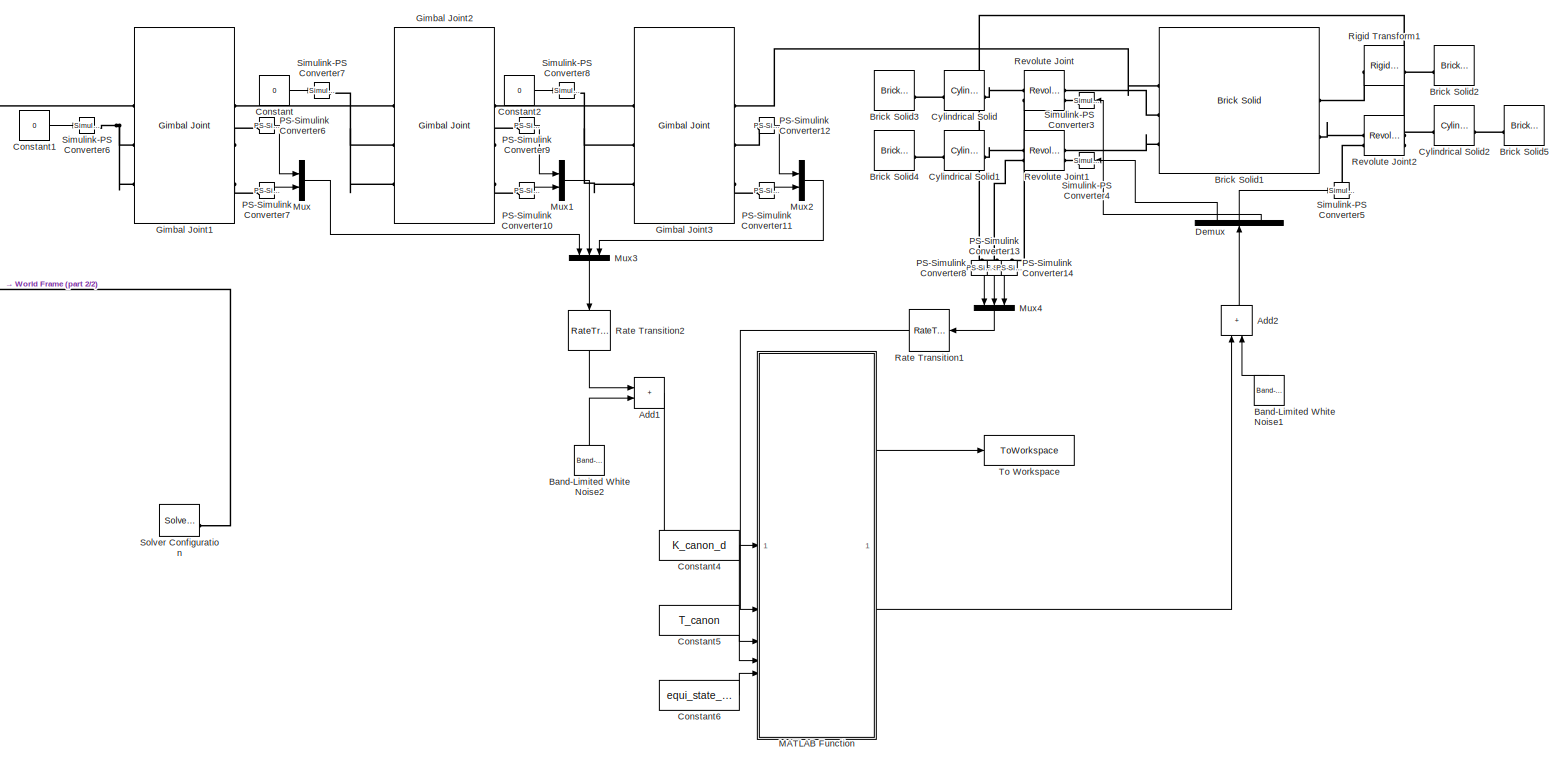
[diagram: root canvas - part 1/2, most of the canvas]
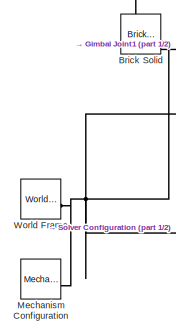
[diagram: root canvas - part 2/2, top left region]
MODEL slx_a6e4c7abbbd3
KIND model
CONFIG AbsTol = 1e-3
CONFIG EnableMultiTasking = on
CONFIG FixedStep = 0.02
CONFIG MaxStep = auto
CONFIG MinStep = auto
CONFIG RelTol = 1e-3
CONFIG SampleTimeConstraint = Unconstrained
CONFIG SolverName = VariableStepAuto
CONFIG StartTime = 0.0
CONFIG StopTime = 20
BLOCK [Sum] Add1
  IconShape = rectangular
BLOCK [Sum] Add2
  IconShape = rectangular
  NameLocation = right
BLOCK [Reference] Band-Limited White Noise1  REF=simulink/Sources/Band-Limited
White Noise
  NameLocation = right
  SourceBlock = simulink/Sources/Band-Limited\nWhite Noise
  SourceType = Band-Limited White Noise.
BLOCK [Reference] Band-Limited White Noise2  REF=simulink/Sources/Band-Limited
White Noise
  NameLocation = right
  SourceBlock = simulink/Sources/Band-Limited\nWhite Noise
  SourceType = Band-Limited White Noise.
BLOCK [Reference] Brick Solid  REF=sm_lib/Body Elements/Brick Solid
  SourceBlock = sm_lib/Body Elements/Brick Solid
  SourceType = Brick Solid
BLOCK [Reference] Brick Solid1  REF=sm_lib/Body Elements/Brick Solid
  NameLocation = left
  SourceBlock = sm_lib/Body Elements/Brick Solid
  SourceType = Brick Solid
BLOCK [Reference] Brick Solid2  REF=sm_lib/Body Elements/Brick Solid
  NameLocation = top
  SourceBlock = sm_lib/Body Elements/Brick Solid
  SourceType = Brick Solid
BLOCK [Reference] Brick Solid3  REF=sm_lib/Body Elements/Brick Solid
  SourceBlock = sm_lib/Body Elements/Brick Solid
  SourceType = Brick Solid
BLOCK [Reference] Brick Solid4  REF=sm_lib/Body Elements/Brick Solid
  SourceBlock = sm_lib/Body Elements/Brick Solid
  SourceType = Brick Solid
BLOCK [Reference] Brick Solid5  REF=sm_lib/Body Elements/Brick Solid
  NameLocation = top
  SourceBlock = sm_lib/Body Elements/Brick Solid
  SourceType = Brick Solid
BLOCK [Constant] Constant
  Value = 0
BLOCK [Constant] Constant1
  Value = 0
BLOCK [Constant] Constant2
  Value = 0
BLOCK [Constant] Constant4
  Value = K_canon_d
BLOCK [Constant] Constant5
  Value = T_canon
BLOCK [Constant] Constant6
  Value = equi_state_up
BLOCK [Reference] Cylindrical Solid  REF=sm_lib/Body Elements/Cylindrical Solid
  SourceBlock = sm_lib/Body Elements/Cylindrical Solid
  SourceType = Cylindrical Solid
BLOCK [Reference] Cylindrical Solid1  REF=sm_lib/Body Elements/Cylindrical Solid
  SourceBlock = sm_lib/Body Elements/Cylindrical Solid
  SourceType = Cylindrical Solid
BLOCK [Reference] Cylindrical Solid2  REF=sm_lib/Body Elements/Cylindrical Solid
  NameLocation = top
  SourceBlock = sm_lib/Body Elements/Cylindrical Solid
  SourceType = Cylindrical Solid
BLOCK [Demux] Demux
  NameLocation = right
  Outputs = 3
BLOCK [Reference] Gimbal Joint1  REF=sm_lib/Joints/Gimbal Joint
  SourceBlock = sm_lib/Joints/Gimbal Joint
  SourceType = Gimbal Joint
BLOCK [Reference] Gimbal Joint2  REF=sm_lib/Joints/Gimbal Joint
  SourceBlock = sm_lib/Joints/Gimbal Joint
  SourceType = Gimbal Joint
BLOCK [Reference] Gimbal Joint3  REF=sm_lib/Joints/Gimbal Joint
  SourceBlock = sm_lib/Joints/Gimbal Joint
  SourceType = Gimbal Joint
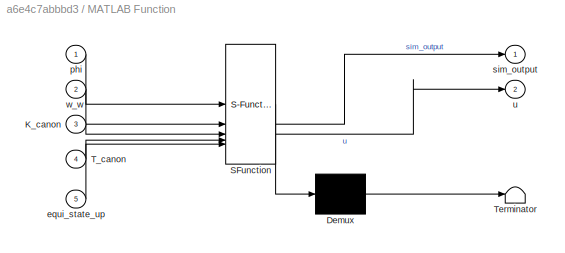
BLOCK [SubSystem] MATLAB Function
  ErrorFcn = Stateflow.Translate.translate
  LibrarySourceBlock = simulink/User-Defined\nFunctions/MATLAB Function
  PermitHierarchicalResolution = ExplicitOnly
  SFBlockType = MATLAB Function
  TreatAsAtomicUnit = on
BLOCK [Demux] MATLAB Function/ Demux 
  Outputs = 1
BLOCK [S-Function] MATLAB Function/ SFunction 
  EnableBusSupport = off
  FunctionName = sf_sfun
  PortCounts = [5 3]
  SFcnIsStateOwnerBlock = off
  SFunctionDeploymentMode = off
  Tag = Stateflow S-Function 2
BLOCK [Terminator] MATLAB Function/ Terminator 
BLOCK [Inport] MATLAB Function/K_canon
  Port = 3
BLOCK [Inport] MATLAB Function/T_canon
  Port = 4
BLOCK [Inport] MATLAB Function/equi_state_up
  Port = 5
BLOCK [Inport] MATLAB Function/phi
BLOCK [Outport] MATLAB Function/sim_output
BLOCK [Outport] MATLAB Function/u
  Port = 2
BLOCK [Inport] MATLAB Function/w_w
  Port = 2
BLOCK [Reference] Mechanism Configuration  REF=sm_lib/Utilities/Mechanism
Configuration
  SourceBlock = sm_lib/Utilities/Mechanism\nConfiguration
  SourceType = Mechanism\nConfiguration
BLOCK [Mux] Mux
  DisplayOption = bar
  Inputs = 2
BLOCK [Mux] Mux1
  DisplayOption = bar
  Inputs = 2
BLOCK [Mux] Mux2
  DisplayOption = bar
  Inputs = 2
BLOCK [Mux] Mux3
  DisplayOption = bar
  Inputs = 3
  NameLocation = left
BLOCK [Mux] Mux4
  DisplayOption = bar
  Inputs = 3
  NameLocation = left
BLOCK [Reference] PS-Simulink Converter10  REF=nesl_utility/PS-Simulink
Converter
  SourceBlock = nesl_utility/PS-Simulink\nConverter
  SourceType = PS-Simulink\nConverter
BLOCK [Reference] PS-Simulink Converter11  REF=nesl_utility/PS-Simulink
Converter
  SourceBlock = nesl_utility/PS-Simulink\nConverter
  SourceType = PS-Simulink\nConverter
BLOCK [Reference] PS-Simulink Converter12  REF=nesl_utility/PS-Simulink
Converter
  SourceBlock = nesl_utility/PS-Simulink\nConverter
  SourceType = PS-Simulink\nConverter
BLOCK [Reference] PS-Simulink Converter13  REF=nesl_utility/PS-Simulink
Converter
  NameLocation = left
  SourceBlock = nesl_utility/PS-Simulink\nConverter
  SourceType = PS-Simulink\nConverter
BLOCK [Reference] PS-Simulink Converter14  REF=nesl_utility/PS-Simulink
Converter
  NameLocation = left
  SourceBlock = nesl_utility/PS-Simulink\nConverter
  SourceType = PS-Simulink\nConverter
BLOCK [Reference] PS-Simulink Converter6  REF=nesl_utility/PS-Simulink
Converter
  SourceBlock = nesl_utility/PS-Simulink\nConverter
  SourceType = PS-Simulink\nConverter
BLOCK [Reference] PS-Simulink Converter7  REF=nesl_utility/PS-Simulink
Converter
  SourceBlock = nesl_utility/PS-Simulink\nConverter
  SourceType = PS-Simulink\nConverter
BLOCK [Reference] PS-Simulink Converter8  REF=nesl_utility/PS-Simulink
Converter
  NameLocation = left
  SourceBlock = nesl_utility/PS-Simulink\nConverter
  SourceType = PS-Simulink\nConverter
BLOCK [Reference] PS-Simulink Converter9  REF=nesl_utility/PS-Simulink
Converter
  SourceBlock = nesl_utility/PS-Simulink\nConverter
  SourceType = PS-Simulink\nConverter
BLOCK [RateTransition] Rate Transition1
  InitialCondition = [0 0 0]
  NameLocation = top
  OutPortSampleTime = 0.01
  OutPortSampleTimeMultiple = 3
BLOCK [RateTransition] Rate Transition2
  InitialCondition = [0 0 -2*atan((1 + sqrt(2))*(-2 + sqrt(2) + sqrt(9 - 6*sqrt(2)))) 0 pi/4 0]
  NameLocation = left
  OutPortSampleTime = 0.01
  OutPortSampleTimeMultiple = 3
BLOCK [Reference] Revolute Joint  REF=sm_lib/Joints/Revolute Joint
  NameLocation = top
  SourceBlock = sm_lib/Joints/Revolute Joint
  SourceType = Revolute Joint
BLOCK [Reference] Revolute Joint1  REF=sm_lib/Joints/Revolute Joint
  NameLocation = top
  SourceBlock = sm_lib/Joints/Revolute Joint
  SourceType = Revolute Joint
BLOCK [Reference] Revolute Joint2  REF=sm_lib/Joints/Revolute Joint
  SourceBlock = sm_lib/Joints/Revolute Joint
  SourceType = Revolute Joint
BLOCK [Reference] Rigid Transform1  REF=sm_lib/Frames and
Transforms/Rigid
Transform
  SourceBlock = sm_lib/Frames and\nTransforms/Rigid\nTransform
  SourceType = Rigid\nTransform
BLOCK [Reference] Simulink-PS Converter3  REF=nesl_utility/Simulink-PS
Converter
  NameLocation = top
  SourceBlock = nesl_utility/Simulink-PS\nConverter
  SourceType = Simulink-PS\nConverter
BLOCK [Reference] Simulink-PS Converter4  REF=nesl_utility/Simulink-PS
Converter
  NameLocation = top
  SourceBlock = nesl_utility/Simulink-PS\nConverter
  SourceType = Simulink-PS\nConverter
BLOCK [Reference] Simulink-PS Converter5  REF=nesl_utility/Simulink-PS
Converter
  SourceBlock = nesl_utility/Simulink-PS\nConverter
  SourceType = Simulink-PS\nConverter
BLOCK [Reference] Simulink-PS Converter6  REF=nesl_utility/Simulink-PS
Converter
  SourceBlock = nesl_utility/Simulink-PS\nConverter
  SourceType = Simulink-PS\nConverter
BLOCK [Reference] Simulink-PS Converter7  REF=nesl_utility/Simulink-PS
Converter
  SourceBlock = nesl_utility/Simulink-PS\nConverter
  SourceType = Simulink-PS\nConverter
BLOCK [Reference] Simulink-PS Converter8  REF=nesl_utility/Simulink-PS
Converter
  SourceBlock = nesl_utility/Simulink-PS\nConverter
  SourceType = Simulink-PS\nConverter
BLOCK [Reference] Solver Configuration  REF=nesl_utility/Solver
Configuration
  SourceBlock = nesl_utility/Solver\nConfiguration
  SourceType = Solver\nConfiguration
BLOCK [ToWorkspace] To Workspace
  FixptAsFi = on
  MaxDataPoints = inf
  SampleTime = -1
  SaveFormat = Timeseries
  VariableName = simout
BLOCK [Reference] World Frame  REF=sm_lib/Frames and
Transforms/World Frame
  SourceBlock = sm_lib/Frames and\nTransforms/World Frame
  SourceType = World Frame
LINE Add1:1 -> MATLAB Function:1
LINE Add2:1 -> Demux:1
LINE Band-Limited White Noise1:1 -> Add2:2
LINE Band-Limited White Noise2:1 -> Add1:2
LINE Constant1:1 -> Simulink-PS Converter6:1
LINE Constant2:1 -> Simulink-PS Converter8:1
LINE Constant4:1 -> MATLAB Function:3
LINE Constant5:1 -> MATLAB Function:4
LINE Constant6:1 -> MATLAB Function:5
LINE Constant:1 -> Simulink-PS Converter7:1
LINE Demux:1 -> Simulink-PS Converter4:1
LINE Demux:2 -> Simulink-PS Converter5:1
LINE Demux:3 -> Simulink-PS Converter3:1
LINE MATLAB Function:1 -> To Workspace:1
LINE MATLAB Function:2 -> Add2:1
LINE Mux1:1 -> Mux3:2
LINE Mux2:1 -> Mux3:3
LINE Mux3:1 -> Rate Transition2:1
LINE Mux4:1 -> Rate Transition1:1
LINE Mux:1 -> Mux3:1
LINE PS-Simulink Converter10:1 -> Mux1:2
LINE PS-Simulink Converter11:1 -> Mux2:2
LINE PS-Simulink Converter12:1 -> Mux2:1
LINE PS-Simulink Converter13:1 -> Mux4:2
LINE PS-Simulink Converter14:1 -> Mux4:3
LINE PS-Simulink Converter6:1 -> Mux:1
LINE PS-Simulink Converter7:1 -> Mux:2
LINE PS-Simulink Converter8:1 -> Mux4:1
LINE PS-Simulink Converter9:1 -> Mux1:1
LINE Rate Transition1:1 -> MATLAB Function:2
LINE Rate Transition2:1 -> Add1:1
PLINE Brick Solid1:LConn1 -- Gimbal Joint3:RConn1
PLINE Brick Solid1:LConn2 -- Revolute Joint:LConn1
PLINE Brick Solid1:LConn3 -- Revolute Joint1:LConn1
PLINE Brick Solid1:RConn1 -- Rigid Transform1:LConn1
PLINE Brick Solid1:RConn2 -- Revolute Joint2:LConn1
PLINE Brick Solid2:RConn1 -- Rigid Transform1:RConn1
PLINE Brick Solid3:RConn1 -- Cylindrical Solid:LConn1
PLINE Brick Solid4:RConn1 -- Cylindrical Solid1:LConn1
PLINE Brick Solid5:RConn1 -- Cylindrical Solid2:LConn1
PNET net1: Brick Solid:RConn1 -- Gimbal Joint1:LConn1 -- Mechanism Configuration:RConn1 -- Solver Configuration:RConn1 -- World Frame:RConn1
PLINE Cylindrical Solid1:RConn1 -- Revolute Joint1:RConn1
PLINE Cylindrical Solid2:RConn1 -- Revolute Joint2:RConn1
PLINE Cylindrical Solid:RConn1 -- Revolute Joint:RConn1
PNET net2: Gimbal Joint1:LConn2 -- Gimbal Joint1:LConn3 -- Simulink-PS Converter6:RConn1
PLINE Gimbal Joint1:RConn1 -- Gimbal Joint2:LConn1
PLINE Gimbal Joint1:RConn2 -- PS-Simulink Converter6:LConn1
PLINE Gimbal Joint1:RConn3 -- PS-Simulink Converter7:LConn1
PNET net3: Gimbal Joint2:LConn2 -- Gimbal Joint2:LConn3 -- Simulink-PS Converter7:RConn1
PLINE Gimbal Joint2:RConn1 -- Gimbal Joint3:LConn1
PLINE Gimbal Joint2:RConn2 -- PS-Simulink Converter9:LConn1
PLINE Gimbal Joint2:RConn3 -- PS-Simulink Converter10:LConn1
PNET net4: Gimbal Joint3:LConn2 -- Gimbal Joint3:LConn3 -- Simulink-PS Converter8:RConn1
PLINE Gimbal Joint3:RConn2 -- PS-Simulink Converter12:LConn1
PLINE Gimbal Joint3:RConn3 -- PS-Simulink Converter11:LConn1
PLINE PS-Simulink Converter13:LConn1 -- Revolute Joint2:RConn2
PLINE PS-Simulink Converter14:LConn1 -- Revolute Joint:RConn2
PLINE PS-Simulink Converter8:LConn1 -- Revolute Joint1:RConn2
PLINE Revolute Joint1:LConn2 -- Simulink-PS Converter4:RConn1
PLINE Revolute Joint2:LConn2 -- Simulink-PS Converter5:RConn1
PLINE Revolute Joint:LConn2 -- Simulink-PS Converter3:RConn1
note: PNET lines group multi-terminal physical nets as a canonical sorted terminal list (undirected conserving connections); 2-terminal nets keep the pairwise PLINE form
CHART MATLAB Function states=1 transitions=1
  STATE_LABEL 'eML_blk_kernel()'
  STATE_LABEL "SCRIPT:\nfunction [sim_output, u]= fcn(phi, w_w, K_canon, T_canon, equi_state_up)\n\n    % Get all variables from input\n    a = phi(1);\n    a_dot = phi(2);\n    b = phi(3);\n    b_dot = phi(4);\n    g = phi(5);\n    g_dot = phi(6);\n    w_w_1 = w_w(1);\n    w_w_2 = w_w(2);\n    w_w_3 = w_w(3);\n\n    % Get housing angular velocityies\n    w_h = get_F_inv(b,g)*[a_dot, b_dot, g_dot]';\n\n    %Create state vector\n ...<+932ch>"
CHART  states=0 transitions=0
